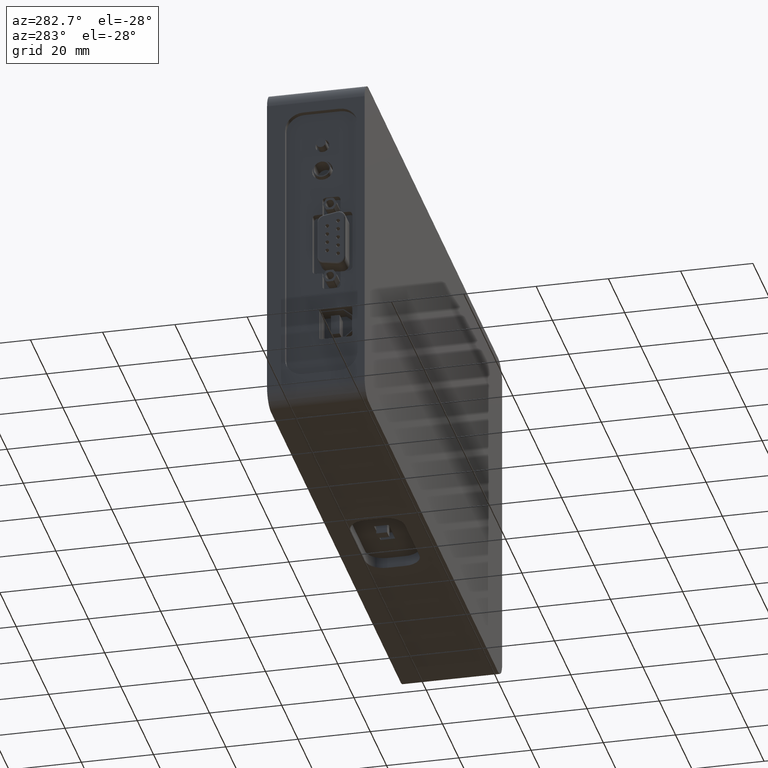
[diagram: clean part render]
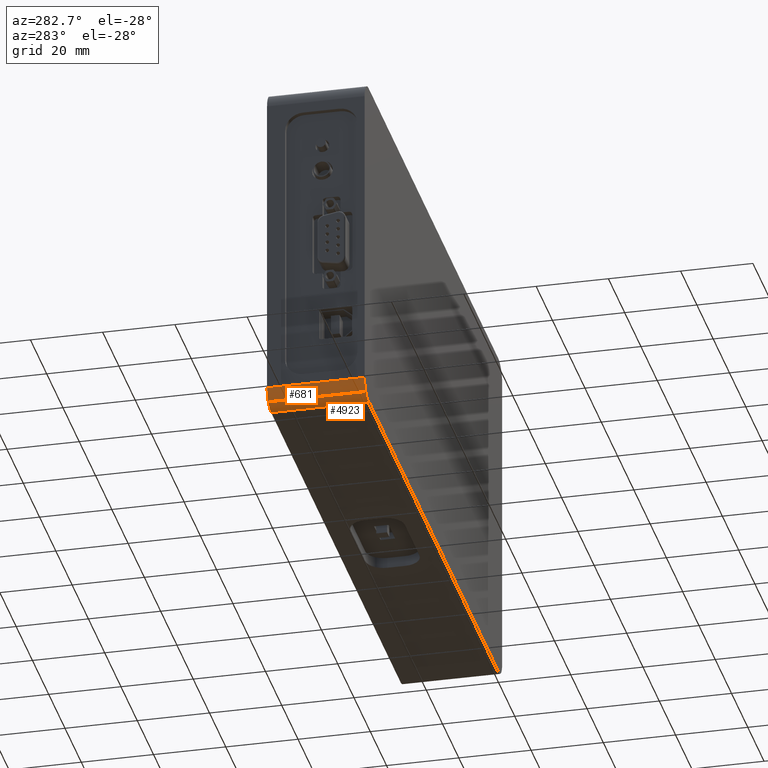
[diagram: same view with one multi-face feature highlighted, each face labeled with its STEP entity id]
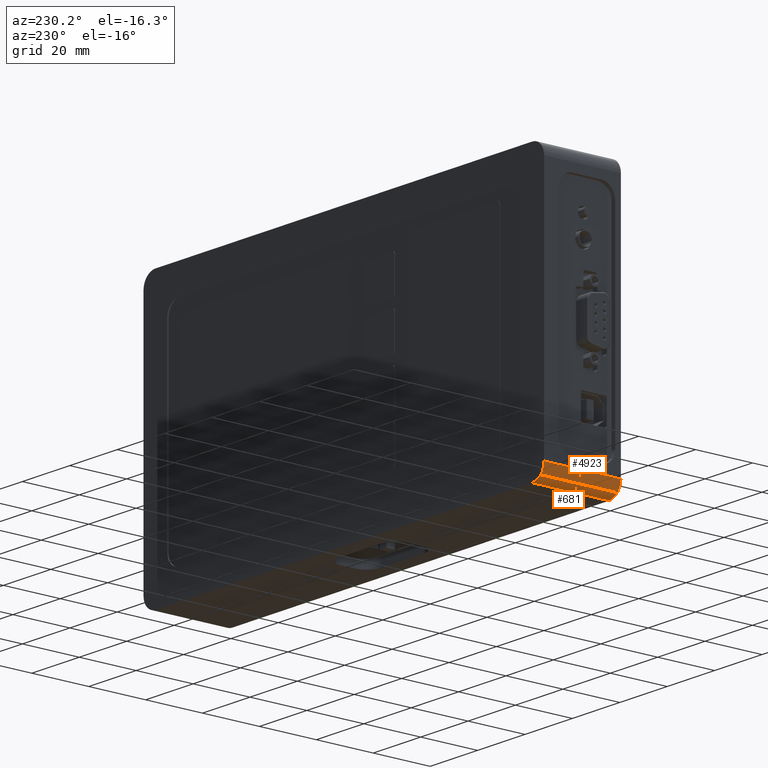
[diagram: same view with one multi-face feature highlighted, each face labeled with its STEP entity id]
A machine part, auxiliary view. The highlighted faces form ONE feature: a constant-radius fillet chain: 2 tangent blend faces with common blend radius 5 mm. The faces share edges in the B-rep.
A second angle (auxiliary view) of the same feature is appended — it is thin or edge-on in the first view.
Their STEP definitions:
[1] entity #4923 (Cylinder):
#256 = CARTESIAN_POINT ( 'NONE',  ( -84.50000000000000000, 27.00000000000000000, -43.00000000000000000 ) ) ;
#461 = CARTESIAN_POINT ( 'NONE',  ( -83.03553390593273775, 0.000000000000000000, -46.53553390593273775 ) ) ;
#469 = EDGE_CURVE ( 'NONE', #8971, #5558, #6338, .T. ) ;
#645 = CARTESIAN_POINT ( 'NONE',  ( -79.50000000000000000, 0.000000000000000000, -43.00000000000000000 ) ) ;
#902 = CARTESIAN_POINT ( 'NONE',  ( -83.03553390593273775, 27.00000000000000000, -46.53553390593273775 ) ) ;
#1348 = EDGE_LOOP ( 'NONE', ( #7575, #8573, #2885, #4256 ) ) ;
#1567 = AXIS2_PLACEMENT_3D ( 'NONE', #8693, #7908, #6510 ) ;
#1628 = VERTEX_POINT ( 'NONE', #256 ) ;
#1646 = DIRECTION ( 'NONE',  ( 0.000000000000000000, 1.000000000000000000, 0.000000000000000000 ) ) ;
#1839 = DIRECTION ( 'NONE',  ( -2.775557561562889810E-17, 1.000000000000000000, 2.775557561562889810E-17 ) ) ;
#2145 = CARTESIAN_POINT ( 'NONE',  ( -84.50000000000000000, 0.000000000000000000, -43.00000000000000000 ) ) ;
#2398 = CARTESIAN_POINT ( 'NONE',  ( -79.50000000000000000, 27.00000000000000000, -43.00000000000000000 ) ) ;
#2855 = VECTOR ( 'NONE', #5415, 1000.000000000000000 ) ;
#2885 = ORIENTED_EDGE ( 'NONE', *, *, #3579, .T. ) ;
#3072 = LINE ( 'NONE', #7145, #6523 ) ;
#3078 = CARTESIAN_POINT ( 'NONE',  ( -83.03553390593273775, 0.000000000000000000, -46.53553390593273775 ) ) ;
#3257 = DIRECTION ( 'NONE',  ( -0.7071067811865475727, 0.000000000000000000, -0.7071067811865475727 ) ) ;
#3293 = EDGE_CURVE ( 'NONE', #8971, #8049, #5378, .T. ) ;
#3579 = EDGE_CURVE ( 'NONE', #5558, #1628, #3072, .T. ) ;
#3826 = DIRECTION ( 'NONE',  ( 0.000000000000000000, -1.000000000000000000, 0.000000000000000000 ) ) ;
#3986 = AXIS2_PLACEMENT_3D ( 'NONE', #2398, #3826, #6606 ) ;
#4256 = ORIENTED_EDGE ( 'NONE', *, *, #6318, .T. ) ;
#4923 = ADVANCED_FACE ( 'NONE', ( #8638 ), #5607, .T. ) ;
#5378 = LINE ( 'NONE', #461, #2855 ) ;
#5415 = DIRECTION ( 'NONE',  ( 0.000000000000000000, 1.000000000000000000, 0.000000000000000000 ) ) ;
#5558 = VERTEX_POINT ( 'NONE', #2145 ) ;
#5607 = CYLINDRICAL_SURFACE ( 'NONE', #1567, 5.000000000000001776 ) ;
#6318 = EDGE_CURVE ( 'NONE', #1628, #8049, #7910, .T. ) ;
#6338 = CIRCLE ( 'NONE', #7068, 5.000000000000001776 ) ;
#6510 = DIRECTION ( 'NONE',  ( -0.7071067811865475727, 0.000000000000000000, -0.7071067811865475727 ) ) ;
#6523 = VECTOR ( 'NONE', #1646, 1000.000000000000000 ) ;
#6606 = DIRECTION ( 'NONE',  ( -0.7071067811865475727, 0.000000000000000000, -0.7071067811865475727 ) ) ;
#7068 = AXIS2_PLACEMENT_3D ( 'NONE', #645, #1839, #3257 ) ;
#7145 = CARTESIAN_POINT ( 'NONE',  ( -84.50000000000000000, 0.000000000000000000, -43.00000000000000000 ) ) ;
#7575 = ORIENTED_EDGE ( 'NONE', *, *, #3293, .F. ) ;
#7908 = DIRECTION ( 'NONE',  ( 0.000000000000000000, 1.000000000000000000, 0.000000000000000000 ) ) ;
#7910 = CIRCLE ( 'NONE', #3986, 5.000000000000001776 ) ;
#8049 = VERTEX_POINT ( 'NONE', #902 ) ;
#8573 = ORIENTED_EDGE ( 'NONE', *, *, #469, .T. ) ;
#8638 = FACE_OUTER_BOUND ( 'NONE', #1348, .T. ) ;
#8693 = CARTESIAN_POINT ( 'NONE',  ( -79.50000000000000000, 0.000000000000000000, -43.00000000000000000 ) ) ;
#8971 = VERTEX_POINT ( 'NONE', #3078 ) ;
[2] entity #681 (Cylinder):
#262 = ORIENTED_EDGE ( 'NONE', *, *, #4571, .T. ) ;
#387 = CIRCLE ( 'NONE', #3770, 5.000000000000001776 ) ;
#461 = CARTESIAN_POINT ( 'NONE',  ( -83.03553390593273775, 0.000000000000000000, -46.53553390593273775 ) ) ;
#681 = ADVANCED_FACE ( 'NONE', ( #3669 ), #2753, .T. ) ;
#816 = AXIS2_PLACEMENT_3D ( 'NONE', #6376, #6512, #1603 ) ;
#902 = CARTESIAN_POINT ( 'NONE',  ( -83.03553390593273775, 27.00000000000000000, -46.53553390593273775 ) ) ;
#1106 = CIRCLE ( 'NONE', #816, 5.000000000000001776 ) ;
#1152 = ORIENTED_EDGE ( 'NONE', *, *, #3293, .T. ) ;
#1380 = DIRECTION ( 'NONE',  ( 0.000000000000000000, 1.000000000000000000, 0.000000000000000000 ) ) ;
#1577 = DIRECTION ( 'NONE',  ( 0.000000000000000000, -1.000000000000000000, 0.000000000000000000 ) ) ;
#1603 = DIRECTION ( 'NONE',  ( -0.7071067811865475727, 0.000000000000000000, -0.7071067811865475727 ) ) ;
#2468 = VERTEX_POINT ( 'NONE', #3198 ) ;
#2489 = CARTESIAN_POINT ( 'NONE',  ( -79.50000000000000000, 27.00000000000000000, -43.00000000000000000 ) ) ;
#2740 = VERTEX_POINT ( 'NONE', #8617 ) ;
#2753 = CYLINDRICAL_SURFACE ( 'NONE', #5468, 5.000000000000001776 ) ;
#2771 = ORIENTED_EDGE ( 'NONE', *, *, #7435, .T. ) ;
#2855 = VECTOR ( 'NONE', #5415, 1000.000000000000000 ) ;
#3078 = CARTESIAN_POINT ( 'NONE',  ( -83.03553390593273775, 0.000000000000000000, -46.53553390593273775 ) ) ;
#3198 = CARTESIAN_POINT ( 'NONE',  ( -79.50000000000000000, 27.00000000000000000, -48.00000000000000000 ) ) ;
#3293 = EDGE_CURVE ( 'NONE', #8971, #8049, #5378, .T. ) ;
#3510 = EDGE_CURVE ( 'NONE', #2740, #8971, #1106, .T. ) ;
#3645 = LINE ( 'NONE', #6339, #8662 ) ;
#3669 = FACE_OUTER_BOUND ( 'NONE', #5539, .T. ) ;
#3770 = AXIS2_PLACEMENT_3D ( 'NONE', #2489, #8616, #7935 ) ;
#4184 = DIRECTION ( 'NONE',  ( -0.7071067811865475727, 0.000000000000000000, -0.7071067811865475727 ) ) ;
#4571 = EDGE_CURVE ( 'NONE', #8049, #2468, #387, .T. ) ;
#5378 = LINE ( 'NONE', #461, #2855 ) ;
#5415 = DIRECTION ( 'NONE',  ( 0.000000000000000000, 1.000000000000000000, 0.000000000000000000 ) ) ;
#5468 = AXIS2_PLACEMENT_3D ( 'NONE', #6279, #1380, #4184 ) ;
#5539 = EDGE_LOOP ( 'NONE', ( #8836, #1152, #262, #2771 ) ) ;
#6279 = CARTESIAN_POINT ( 'NONE',  ( -79.50000000000000000, 0.000000000000000000, -43.00000000000000000 ) ) ;
#6339 = CARTESIAN_POINT ( 'NONE',  ( -79.50000000000000000, 0.000000000000000000, -48.00000000000000000 ) ) ;
#6376 = CARTESIAN_POINT ( 'NONE',  ( -79.50000000000000000, 0.000000000000000000, -43.00000000000000000 ) ) ;
#6512 = DIRECTION ( 'NONE',  ( -2.775557561562889810E-17, 1.000000000000000000, 2.775557561562889810E-17 ) ) ;
#7435 = EDGE_CURVE ( 'NONE', #2468, #2740, #3645, .T. ) ;
#7935 = DIRECTION ( 'NONE',  ( -0.7071067811865475727, 0.000000000000000000, -0.7071067811865475727 ) ) ;
#8049 = VERTEX_POINT ( 'NONE', #902 ) ;
#8616 = DIRECTION ( 'NONE',  ( 0.000000000000000000, -1.000000000000000000, 0.000000000000000000 ) ) ;
#8617 = CARTESIAN_POINT ( 'NONE',  ( -79.50000000000000000, 0.000000000000000000, -48.00000000000000000 ) ) ;
#8662 = VECTOR ( 'NONE', #1577, 1000.000000000000000 ) ;
#8836 = ORIENTED_EDGE ( 'NONE', *, *, #3510, .T. ) ;
#8971 = VERTEX_POINT ( 'NONE', #3078 ) ;